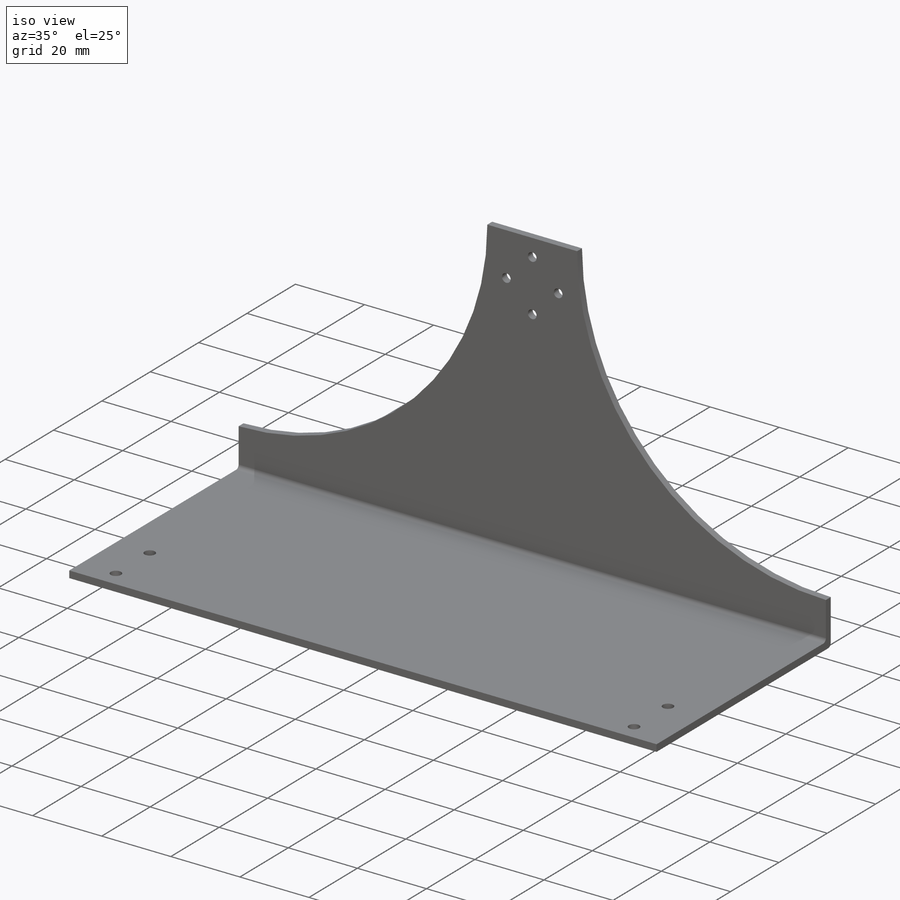
[diagram: iso view]
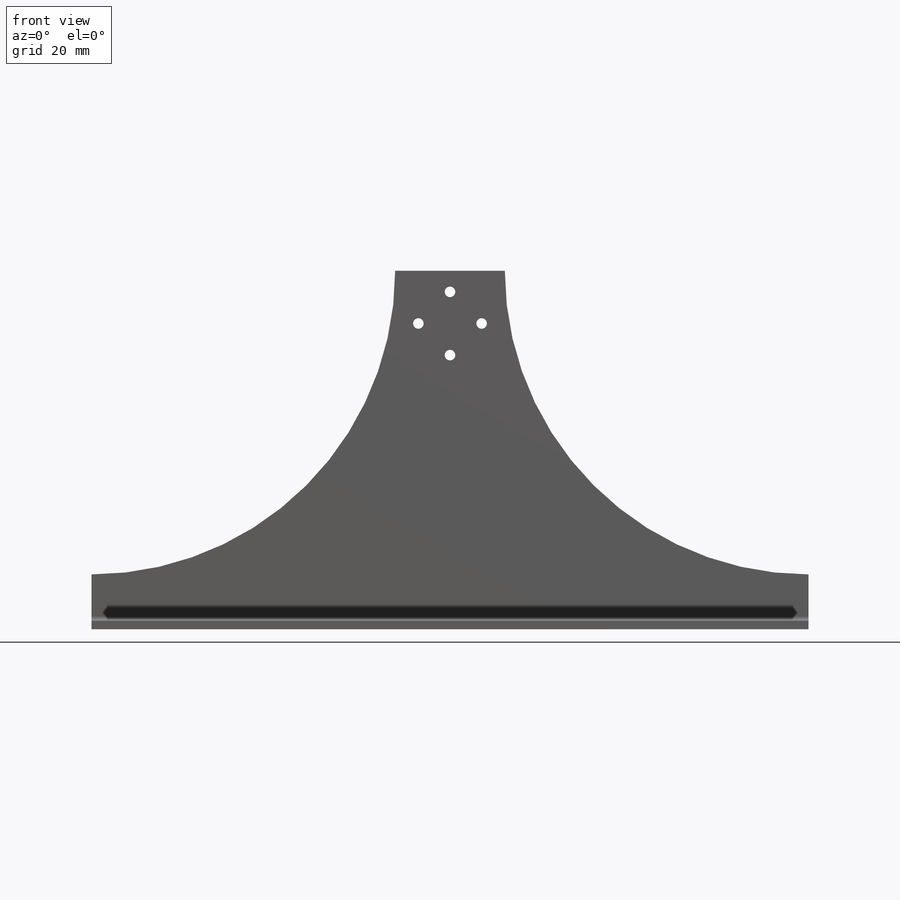
[diagram: front view]
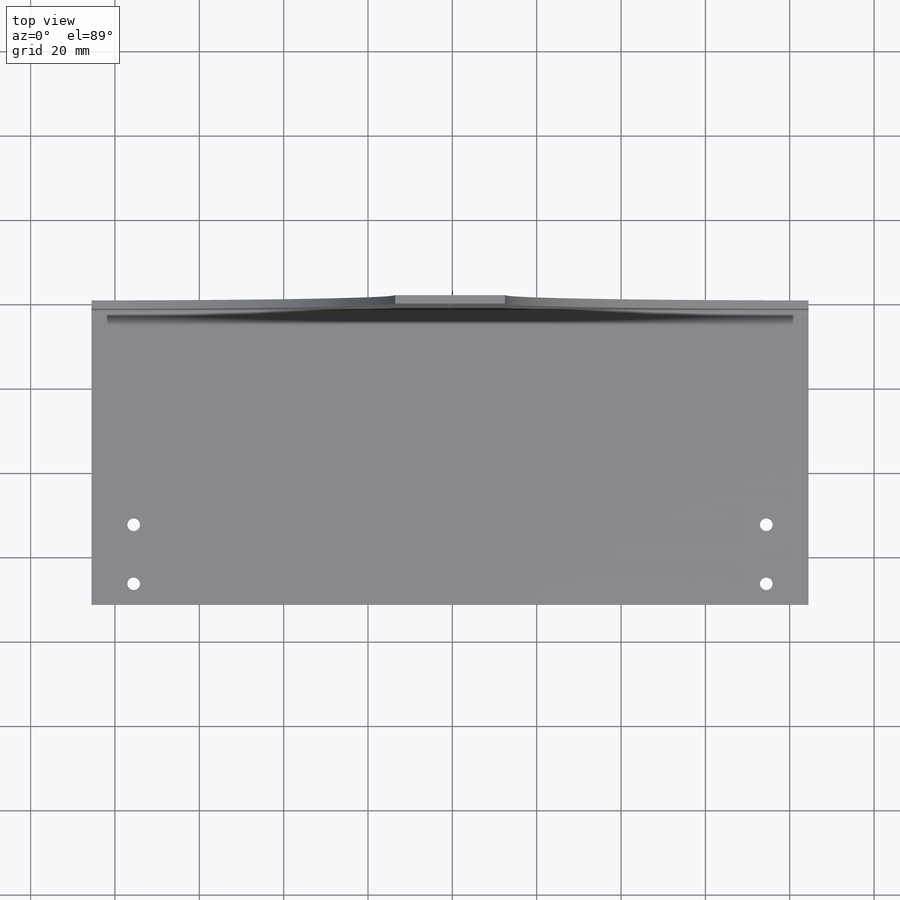
[diagram: top view]
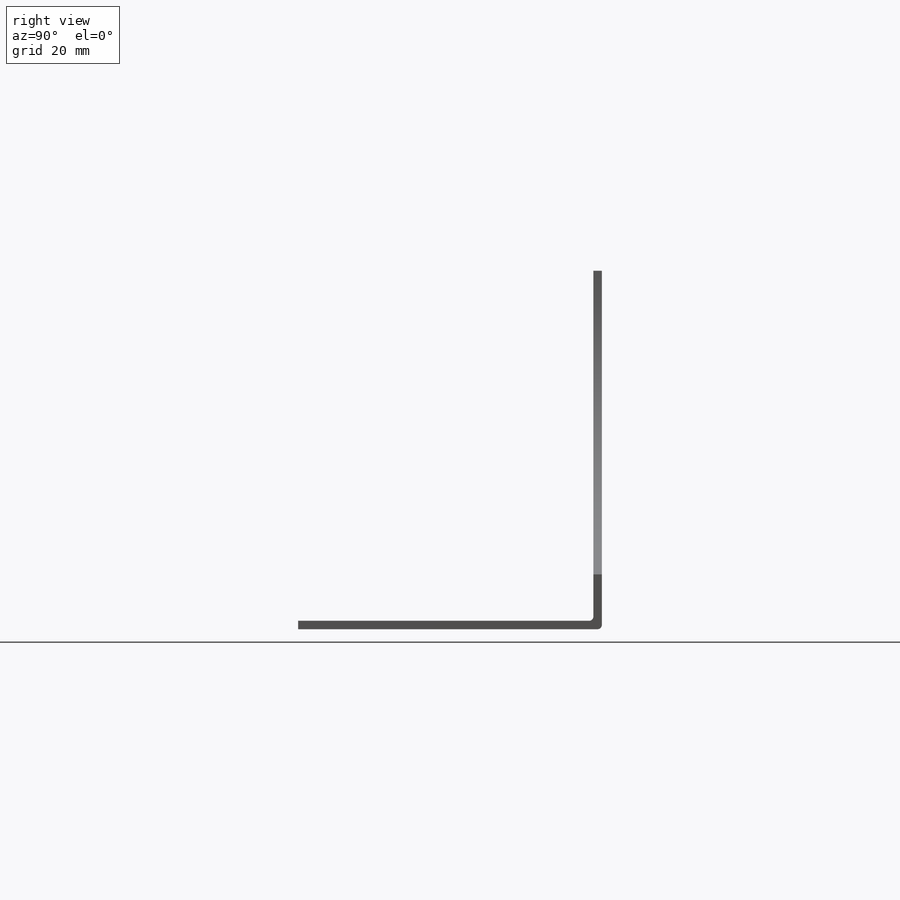
[diagram: right view]
SOLIDWORKS PART (.sldprt)
format: sldprt  version: not decoded by parser v0  size: 216,576 bytes
history: native  units: mm
features: sketch x5, cut_extrude x3, extrude x2, fillet x2, material x1 (+13 scaffold rows collapsed)
feature tree (26):
  scaffold x13  (default folders/planes/origin — collapsed)
  material  "Material <not specified>"
  sketch  "Sketch1"  dims[D1=170.0mm D2=70.0mm]
  extrude  "Boss-Extrude1"  Depth=2mm
  sketch  "Sketch2"  dims[D1=150.0mm D2=150.0mm D3=14.0mm D4=5.0mm D5=10.0mm]
  cut_extrude  "Cut-Extrude1"  Depth=22mm
  sketch  "Sketch4"  dims[D1=170.0mm D2=85.0mm]
  extrude  "Boss-Extrude2"  Depth=2mm
  fillet  "Fillet2"  Radius=1mm
  fillet  "Fillet3"  Radius=1mm
  sketch  "Sketch5"  dims[D1=82.0mm]
  sketch  "Sketch6"  dims[D1=15.0mm D2=5.0mm D3=15.0mm D4=77.5mm D5=85.0mm D6=7.5mm]
  cut_extrude  "Cut-Extrude3"  Depth=12mm
  cut_extrude  "Cut-Extrude4"  Depth=12mm
decode coverage: 12 of 12 modeling features carry decoded parameters
note: suppression state not decoded; provenance and decode notes live in map.json
